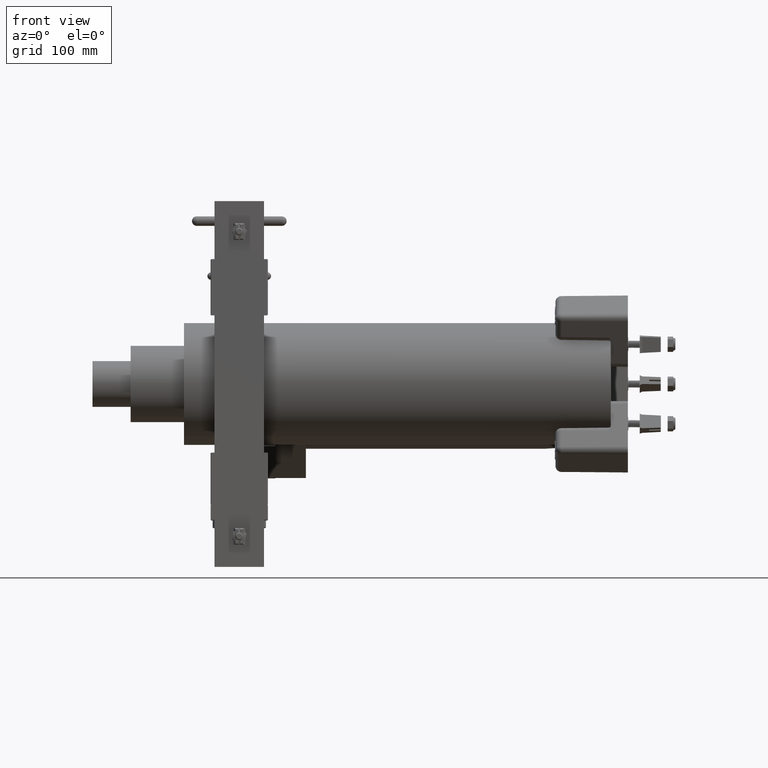
[diagram: clean part render]
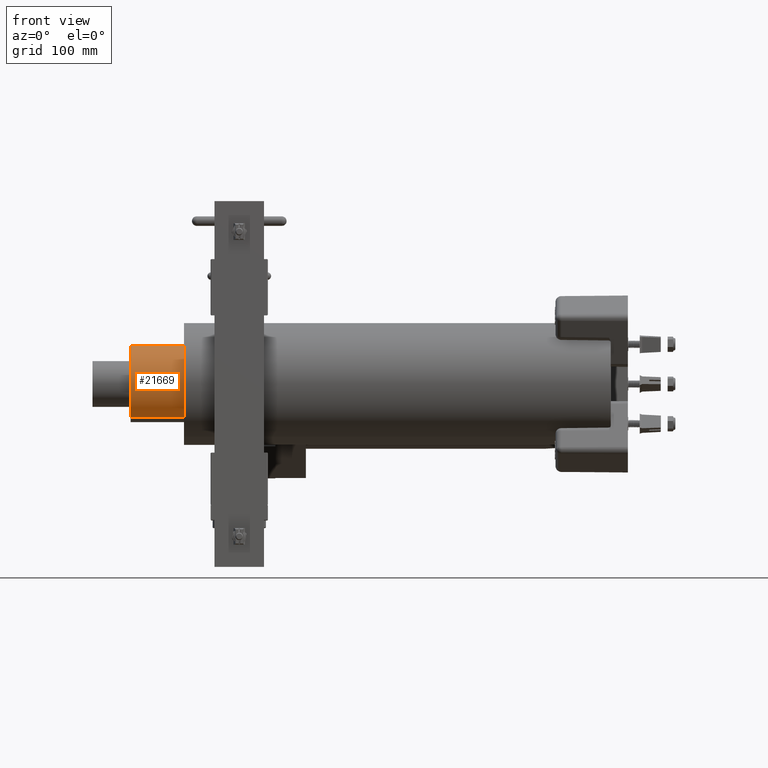
[diagram: same view with one face highlighted and labeled with its STEP entity id]
A machine part, front view. The second image highlights one B-rep face of the part: STEP entity #21669.
In plain terms, the highlighted cylindrical surface (partial cylindrical patch) has radius 31.75 mm, axis along (1, 0, 0).
Its self-contained STEP definition (entity closure, byte-faithful):
#380 = EDGE_CURVE ( 'NONE', #29091, #38229, #34295, .T. ) ;
#790 = CIRCLE ( 'NONE', #22169, 1.250000000000001100 ) ;
#3995 = CARTESIAN_POINT ( 'NONE',  ( 1.530808498934192800E-016, 6.800940116117425200E-033, 1.250000000000001100 ) ) ;
#4615 = CARTESIAN_POINT ( 'NONE',  ( 0.0000000000000000000, 15.74999999999999800, -1.250000000000001100 ) ) ;
#7173 = ORIENTED_EDGE ( 'NONE', *, *, #35742, .T. ) ;
#8353 = LINE ( 'NONE', #3995, #38971 ) ;
#10213 = ORIENTED_EDGE ( 'NONE', *, *, #28285, .F. ) ;
#11063 = AXIS2_PLACEMENT_3D ( 'NONE', #37960, #12994, #42169 ) ;
#11892 = AXIS2_PLACEMENT_3D ( 'NONE', #47126, #42912, #17955 ) ;
#12434 = VECTOR ( 'NONE', #20730, 39.37007874015748100 ) ;
#12846 = VERTEX_POINT ( 'NONE', #4615 ) ;
#12994 = DIRECTION ( 'NONE',  ( -1.598521853841405800E-032, -1.000000000000000000, -3.659266894335748100E-033 ) ) ;
#16915 = DIRECTION ( 'NONE',  ( -1.598521853841405800E-032, -1.000000000000000000, -3.659266894335748100E-033 ) ) ;
#17955 = DIRECTION ( 'NONE',  ( 0.0000000000000000000, -5.440752092893936500E-033, -1.000000000000000000 ) ) ;
#20730 = DIRECTION ( 'NONE',  ( -1.598521853841405800E-032, -1.000000000000000000, -3.659266894335748100E-033 ) ) ;
#21105 = EDGE_LOOP ( 'NONE', ( #10213, #7173, #39471, #47831 ) ) ;
#21669 = ADVANCED_FACE ( 'NONE', ( #45854 ), #34730, .T. ) ;
#22169 = AXIS2_PLACEMENT_3D ( 'NONE', #41870, #16915, #46086 ) ;
#23219 = CARTESIAN_POINT ( 'NONE',  ( 1.530808498934193500E-016, 14.00000000000000200, 1.250000000000000000 ) ) ;
#23521 = LINE ( 'NONE', #53915, #12434 ) ;
#28285 = EDGE_CURVE ( 'NONE', #53079, #29091, #8353, .T. ) ;
#29091 = VERTEX_POINT ( 'NONE', #23219 ) ;
#33082 = CARTESIAN_POINT ( 'NONE',  ( 1.530808498934193500E-016, 15.74999999999999800, 1.250000000000000000 ) ) ;
#34295 = CIRCLE ( 'NONE', #11063, 1.250000000000001100 ) ;
#34730 = CYLINDRICAL_SURFACE ( 'NONE', #11892, 1.250000000000001100 ) ;
#35701 = EDGE_CURVE ( 'NONE', #12846, #38229, #23521, .T. ) ;
#35742 = EDGE_CURVE ( 'NONE', #53079, #12846, #790, .T. ) ;
#37332 = DIRECTION ( 'NONE',  ( -1.598521853841405800E-032, -1.000000000000000000, -3.659266894335748100E-033 ) ) ;
#37960 = CARTESIAN_POINT ( 'NONE',  ( 0.0000000000000000000, 14.00000000000000200, 0.0000000000000000000 ) ) ;
#38229 = VERTEX_POINT ( 'NONE', #39059 ) ;
#38971 = VECTOR ( 'NONE', #37332, 39.37007874015748100 ) ;
#39059 = CARTESIAN_POINT ( 'NONE',  ( 0.0000000000000000000, 14.00000000000000200, -1.250000000000001100 ) ) ;
#39471 = ORIENTED_EDGE ( 'NONE', *, *, #35701, .T. ) ;
#41870 = CARTESIAN_POINT ( 'NONE',  ( 0.0000000000000000000, 15.74999999999999800, 0.0000000000000000000 ) ) ;
#42169 = DIRECTION ( 'NONE',  ( 0.0000000000000000000, 0.0000000000000000000, -1.000000000000000000 ) ) ;
#42912 = DIRECTION ( 'NONE',  ( -1.598521853841405800E-032, -1.000000000000000000, -3.659266894335748100E-033 ) ) ;
#45854 = FACE_OUTER_BOUND ( 'NONE', #21105, .T. ) ;
#46086 = DIRECTION ( 'NONE',  ( 0.0000000000000000000, 0.0000000000000000000, -1.000000000000000000 ) ) ;
#47126 = CARTESIAN_POINT ( 'NONE',  ( 0.0000000000000000000, 0.0000000000000000000, 0.0000000000000000000 ) ) ;
#47831 = ORIENTED_EDGE ( 'NONE', *, *, #380, .F. ) ;
#53079 = VERTEX_POINT ( 'NONE', #33082 ) ;
#53915 = CARTESIAN_POINT ( 'NONE',  ( 0.0000000000000000000, -6.800940116117426600E-033, -1.250000000000001100 ) ) ;